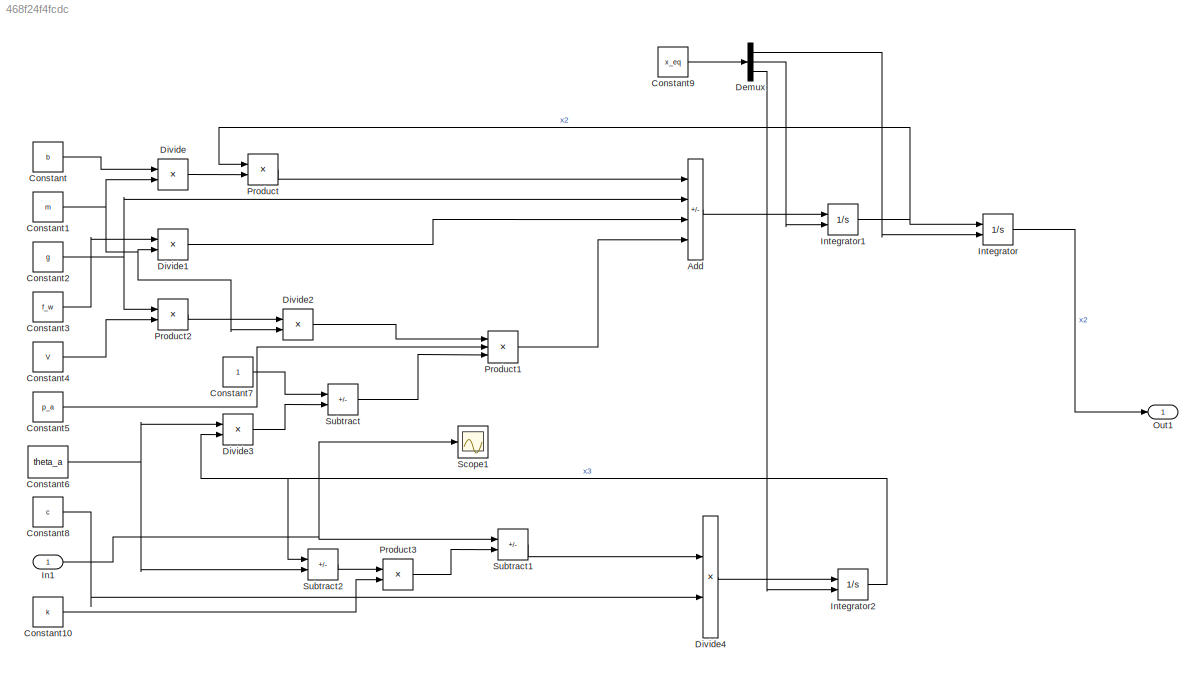
MODEL slx_468f24f4fcdc
KIND model
CONFIG AbsTol = auto
CONFIG EnableMultiTasking = off
CONFIG FixedStep = auto
CONFIG MaxStep = auto
CONFIG MinStep = auto
CONFIG RelTol = 1e-3
CONFIG SampleTimeConstraint = Unconstrained
CONFIG SolverName = VariableStepAuto
CONFIG StartTime = 0.0
CONFIG StopTime = 10
BLOCK [Sum] Add
  IconShape = rectangular
  Inputs = --++
  Ports = [4, 1]
BLOCK [Constant] Constant
  Value = b
BLOCK [Constant] Constant1
  Value = m
BLOCK [Constant] Constant10
  Value = k
BLOCK [Constant] Constant2
  Value = g
BLOCK [Constant] Constant3
  Value = f_w
BLOCK [Constant] Constant4
  Value = V
BLOCK [Constant] Constant5
  Value = p_a
BLOCK [Constant] Constant6
  Value = theta_a
BLOCK [Constant] Constant7
BLOCK [Constant] Constant8
  Value = c
BLOCK [Constant] Constant9
  Value = x_eq
BLOCK [Demux] Demux
  Outputs = 3
  Ports = [1, 3]
BLOCK [Product] Divide
  Inputs = */
  Ports = [2, 1]
BLOCK [Product] Divide1
  Inputs = */
  Ports = [2, 1]
BLOCK [Product] Divide2
  Inputs = */
  Ports = [2, 1]
BLOCK [Product] Divide3
  Inputs = */
  Ports = [2, 1]
BLOCK [Product] Divide4
  Inputs = */
  Ports = [2, 1]
BLOCK [Inport] In1
BLOCK [Integrator] Integrator
  InitialCondition = 600
  InitialConditionSource = external
  Ports = [2, 1]
BLOCK [Integrator] Integrator1
  InitialConditionSource = external
  Ports = [2, 1]
BLOCK [Integrator] Integrator2
  InitialCondition = 377
  InitialConditionSource = external
  Ports = [2, 1]
BLOCK [Outport] Out1
BLOCK [Product] Product
  Ports = [2, 1]
BLOCK [Product] Product1
  Inputs = 3
  Ports = [3, 1]
BLOCK [Product] Product2
  Ports = [2, 1]
BLOCK [Product] Product3
  Ports = [2, 1]
BLOCK [Scope] Scope1
  Floating = off
  NumInputPorts = 1
  Ports = [1]
  ScopeSpecificationString = Simulink.scopes.TimeScopeBlockCfg('CurrentConfiguration', extmgr.ConfigurationSet(extmgr.Configuration('Core','General UI',true),extmgr.Configuration('Core','Source UI',true),extmgr.Configuration('Sources','WiredSimulink',true,'DataLoggingVariableName','ScopeData1'),extmgr.Configuration('Visuals','Time Domain',true,'SerializedDisplays',{struct('MinYLimReal','0.17782','MaxYLimReal','0.37782','YLabe...<+1499ch>
BLOCK [Sum] Subtract
  IconShape = rectangular
  Inputs = +-
  Ports = [2, 1]
BLOCK [Sum] Subtract1
  IconShape = rectangular
  Inputs = +-
  Ports = [2, 1]
BLOCK [Sum] Subtract2
  IconShape = rectangular
  Inputs = +-
  Ports = [2, 1]
LINE Add:1 -> Integrator1:1
LINE Constant10:1 -> Product3:2
NET Constant1:1 -> Divide1:2, Divide2:2, Divide:2
NET Constant2:1 -> Add:2, Product2:1
LINE Constant3:1 -> Divide1:1
LINE Constant4:1 -> Product2:2
LINE Constant5:1 -> Product1:2
NET Constant6:1 -> Divide3:1, Subtract2:2
LINE Constant7:1 -> Subtract:1
LINE Constant8:1 -> Divide4:2
LINE Constant9:1 -> Demux:1
LINE Constant:1 -> Divide:1
LINE Demux:1 -> Integrator:2
LINE Demux:2 -> Integrator1:2
LINE Demux:3 -> Integrator2:2
LINE Divide1:1 -> Add:3
LINE Divide2:1 -> Product1:1
LINE Divide3:1 -> Subtract:2
LINE Divide4:1 -> Integrator2:1
LINE Divide:1 -> Product:2
NET In1:1 -> Scope1:1, Subtract1:1
NET Integrator1:1 -> Integrator:1, Product:1
NET Integrator2:1 -> Divide3:2, Subtract2:1
LINE Integrator:1 -> Out1:1
LINE Product1:1 -> Add:4
LINE Product2:1 -> Divide2:1
LINE Product3:1 -> Subtract1:2
LINE Product:1 -> Add:1
LINE Subtract1:1 -> Divide4:1
LINE Subtract2:1 -> Product3:1
LINE Subtract:1 -> Product1:3
note: NET lines group one-source signal fan-out (src -> all destinations, sorted); 1:1 wires keep LINE
